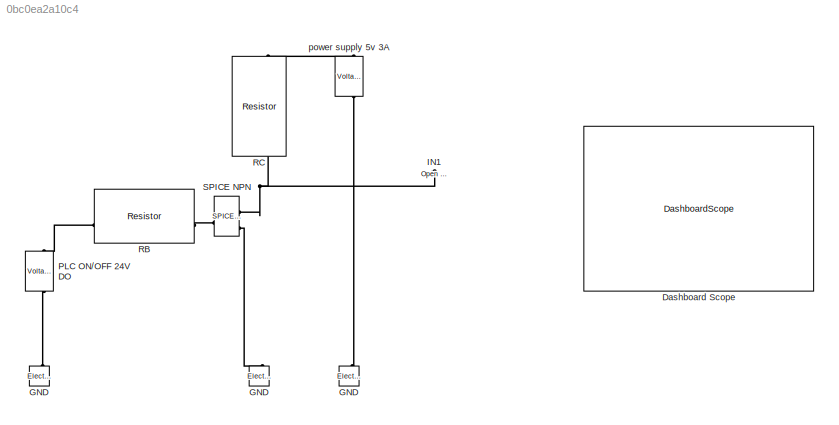
MODEL slx_0bc0ea2a10c4
KIND model
CONFIG AbsTol = auto
CONFIG EnableMultiTasking = off
CONFIG FixedStep = auto
CONFIG MaxStep = auto
CONFIG MinStep = auto
CONFIG RelTol = 1e-3
CONFIG SampleTimeConstraint = Unconstrained
CONFIG SolverName = VariableStepAuto
CONFIG StartTime = 0.0
CONFIG StopTime = 10.0
BLOCK [DashboardScope] Dashboard Scope
BLOCK [Reference] GND  REF=fl_lib/Electrical/Electrical Elements/Electrical Reference
  LibrarySourceBlock = ee_lib/Connectors &\nReferences/Electrical Reference
  NameLocation = right
  SourceBlock = fl_lib/Electrical/Electrical Elements/Electrical Reference
  SourceType = Electrical Reference
BLOCK [Reference] GND   REF=fl_lib/Electrical/Electrical Elements/Electrical Reference
  LibrarySourceBlock = ee_lib/Connectors &\nReferences/Electrical Reference
  NameLocation = right
  SourceBlock = fl_lib/Electrical/Electrical Elements/Electrical Reference
  SourceType = Electrical Reference
BLOCK [Reference] GND    REF=fl_lib/Electrical/Electrical Elements/Electrical Reference
  LibrarySourceBlock = ee_lib/Connectors &\nReferences/Electrical Reference
  NameLocation = right
  SourceBlock = fl_lib/Electrical/Electrical Elements/Electrical Reference
  SourceType = Electrical Reference
BLOCK [Reference] IN1  REF=fl_lib/Electrical/Electrical Elements/Open Circuit
  LibrarySourceBlock = ee_lib/Connectors &\nReferences/Open Circuit
  NameLocation = right
  SourceBlock = fl_lib/Electrical/Electrical Elements/Open Circuit
  SourceType = Open Circuit
BLOCK [Reference] PLC ON//OFF 24V DO  REF=ee_lib/Sources/Voltage Source
  NameLocation = right
  SourceBlock = ee_lib/Sources/Voltage Source
  SourceType = Voltage Source
BLOCK [Reference] RB  REF=ee_lib/Passive/Resistor
  SourceBlock = ee_lib/Passive/Resistor
  SourceType = Resistor
BLOCK [Reference] RC  REF=ee_lib/Passive/Resistor
  NameLocation = left
  SourceBlock = ee_lib/Passive/Resistor
  SourceType = Resistor
BLOCK [Reference] SPICE NPN  REF=ee_lib/Additional
Components/SPICE Semiconductors/SPICE NPN
  SourceBlock = ee_lib/Additional\nComponents/SPICE Semiconductors/SPICE NPN
  SourceType = SPICE NPN
BLOCK [Reference] power supply 5v 3A  REF=ee_lib/Sources/Voltage Source
  NameLocation = right
  SourceBlock = ee_lib/Sources/Voltage Source
  SourceType = Voltage Source
PLINE GND  :LConn1 -- SPICE NPN:RConn3
PLINE GND :LConn1 -- PLC ON//OFF 24V DO:RConn1
PLINE GND:LConn1 -- power supply 5v 3A:RConn1
PNET net1: IN1:LConn1 -- RC:RConn1 -- SPICE NPN:RConn1
PLINE PLC ON//OFF 24V DO:LConn1 -- RB:LConn1
PLINE RB:RConn1 -- SPICE NPN:LConn1
PLINE RC:LConn1 -- power supply 5v 3A:LConn1
note: PNET lines group multi-terminal physical nets as a canonical sorted terminal list (undirected conserving connections); 2-terminal nets keep the pairwise PLINE form
